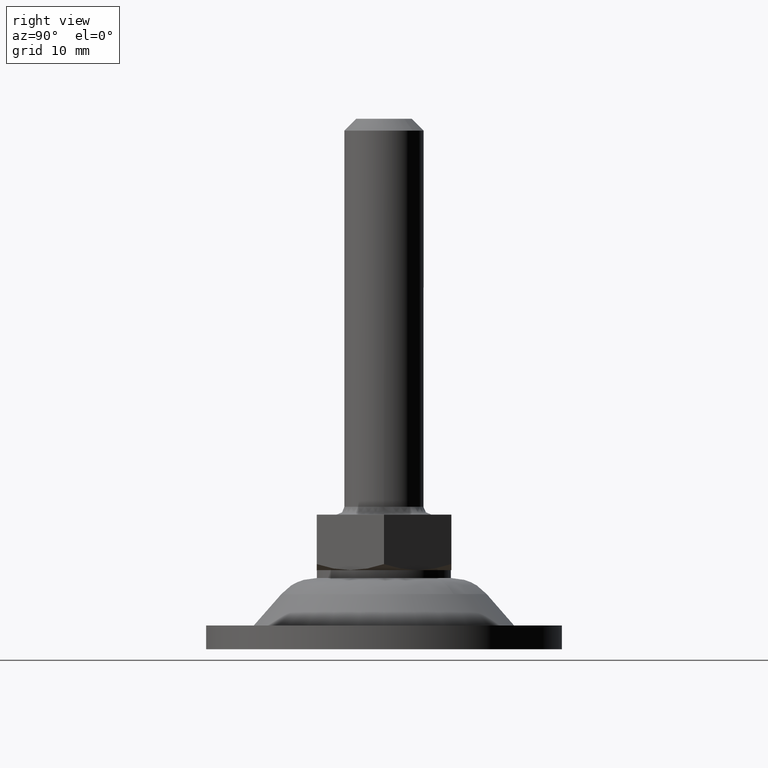
[diagram: clean part render]
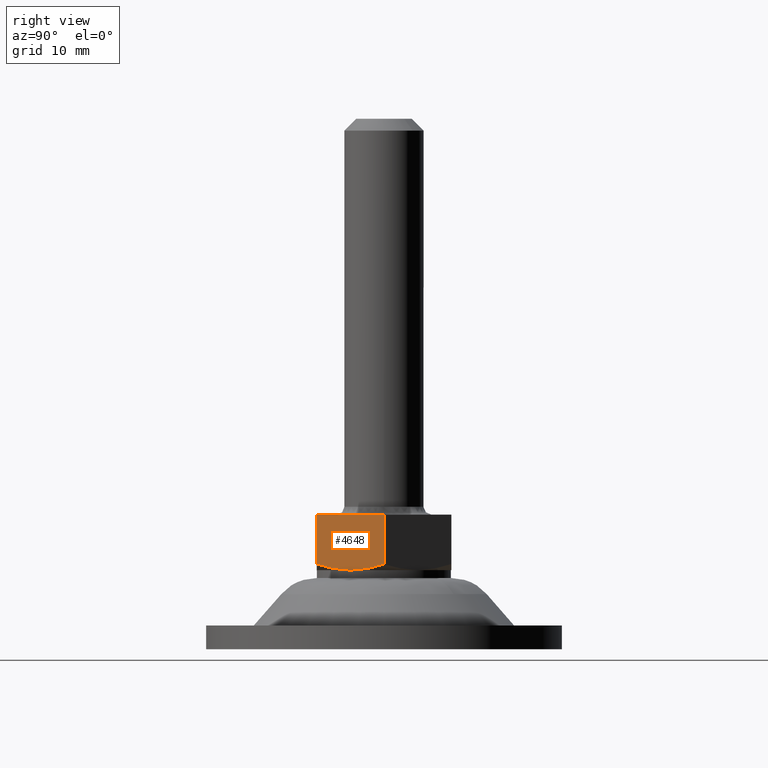
[diagram: same view with one face highlighted and labeled with its STEP entity id]
A machine part, right view. The second image highlights one B-rep face of the part: STEP entity #4648.
In plain terms, the highlighted face is a freeform B-spline surface patch.
Its self-contained STEP definition (entity closure, byte-faithful):
#4181=CARTESIAN_POINT('',(7.361215716083840,-4.250000491757140,10.0));
#4182=VERTEX_POINT('',#4181);
#4463=CARTESIAN_POINT('',(4.907477000000000,-8.500000000000000,10.759189256221140));
#4464=VERTEX_POINT('',#4463);
#4481=CARTESIAN_POINT('',(7.361215716083840,-4.250000491757140,10.0));
#4482=CARTESIAN_POINT('',(7.258456965199602,-4.427983843392349,10.000000989621510));
#4483=CARTESIAN_POINT('',(7.155199900870600,-4.606830299106769,10.004335824142300));
#4484=CARTESIAN_POINT('',(6.948045082854567,-4.965632916894620,10.021670879559540));
#4485=CARTESIAN_POINT('',(6.844048422186803,-5.145760390859048,10.034781721286709));
#4486=CARTESIAN_POINT('',(6.533099112962157,-5.684340314887130,10.086679513501220));
#4487=CARTESIAN_POINT('',(6.327189570208154,-6.040986052964616,10.138061107786131));
#4488=CARTESIAN_POINT('',(5.713126880214234,-7.104573676780420,10.336469077120091));
#4489=CARTESIAN_POINT('',(5.308625386922342,-7.805190713266592,10.527586167243680));
#4490=CARTESIAN_POINT('',(4.907477000000000,-8.500000000000000,10.759189256221140));
#4491=B_SPLINE_CURVE_WITH_KNOTS('',3,(#4481,#4482,#4483,#4484,#4485,#4486,#4487,#4488,#4489,#4490),.UNSPECIFIED.,.F.,.U.,(4,2,2,2,4),(0.500936470067049,0.562500000000000,0.625000000000000,0.750000000000000,1.0),.UNSPECIFIED.);
#4492=EDGE_CURVE('',#4182,#4464,#4491,.T.);
#4511=CARTESIAN_POINT('',(9.814954999999999,1.085020E-015,10.759189584059261));
#4512=VERTEX_POINT('',#4511);
#4513=CARTESIAN_POINT('',(9.814954999999999,1.085020E-015,10.759189584059261));
#4514=CARTESIAN_POINT('',(9.414306039186624,-0.693944255463544,10.527874798682690));
#4515=CARTESIAN_POINT('',(9.010735993766827,-1.392947977144676,10.337229470373900));
#4516=CARTESIAN_POINT('',(8.399068318228373,-2.452387314840497,10.139150173579470));
#4517=CARTESIAN_POINT('',(8.194124468711614,-2.807360423409189,10.087806985720979));
#4518=CARTESIAN_POINT('',(7.781849930526229,-3.521440766627392,10.018351914636961));
#4519=CARTESIAN_POINT('',(7.574517179362106,-3.880551573623377,10.000268746968620));
#4520=CARTESIAN_POINT('',(7.364341818161772,-4.244585924913969,10.000000990504020));
#4521=CARTESIAN_POINT('',(7.362778824733939,-4.247293108550161,10.000000002491150));
#4522=CARTESIAN_POINT('',(7.361215716083840,-4.250000491757140,10.0));
#4523=B_SPLINE_CURVE_WITH_KNOTS('',3,(#4513,#4514,#4515,#4516,#4517,#4518,#4519,#4520,#4521,#4522),.UNSPECIFIED.,.F.,.U.,(4,2,2,2,4),(0.0,0.250000000000000,0.375000000000000,0.500000000000000,0.500936470038509),.UNSPECIFIED.);
#4524=EDGE_CURVE('',#4512,#4182,#4523,.T.);
#4571=CARTESIAN_POINT('',(4.907477000000000,-8.500000000000000,17.0));
#4572=VERTEX_POINT('',#4571);
#4578=CARTESIAN_POINT('',(9.814954999999999,0.0,17.0));
#4579=VERTEX_POINT('',#4578);
#4580=CARTESIAN_POINT('',(4.907477000000000,-8.500000000000000,17.0));
#4581=CARTESIAN_POINT('',(9.814954999999999,0.0,17.0));
#4582=QUASI_UNIFORM_CURVE('',1,(#4580,#4581),.UNSPECIFIED.,.F.,.U.);
#4583=EDGE_CURVE('',#4572,#4579,#4582,.T.);
#4623=CARTESIAN_POINT('',(9.814954999999999,0.0,17.0));
#4624=CARTESIAN_POINT('',(9.814954999999999,1.085020E-015,10.759189584059261));
#4625=QUASI_UNIFORM_CURVE('',1,(#4623,#4624),.UNSPECIFIED.,.F.,.U.);
#4626=EDGE_CURVE('',#4579,#4512,#4625,.T.);
#4632=CARTESIAN_POINT('',(10.060083470520469,0.424574903733432,9.650350013567360));
#4633=CARTESIAN_POINT('',(4.662348353974450,-8.924575207717121,9.650350013567360));
#4634=CARTESIAN_POINT('',(10.060083470520469,0.424574903733432,17.349650174187278));
#4635=CARTESIAN_POINT('',(4.662348353974450,-8.924575207717121,17.349650174187278));
#4636=B_SPLINE_SURFACE_WITH_KNOTS('',1,1,((#4632,#4634),(#4633,#4635)),.UNSPECIFIED.,.F.,.F.,.U.,(2,2),(2,2),(0.0,10.795469058583320),(0.0,7.699300160619915),.UNSPECIFIED.);
#4637=ORIENTED_EDGE('',*,*,#4524,.F.);
#4638=ORIENTED_EDGE('',*,*,#4626,.F.);
#4639=ORIENTED_EDGE('',*,*,#4583,.F.);
#4640=CARTESIAN_POINT('',(4.907477000000000,-8.500000000000000,17.0));
#4641=CARTESIAN_POINT('',(4.907477000000000,-8.500000000000000,10.759189256221140));
#4642=QUASI_UNIFORM_CURVE('',1,(#4640,#4641),.UNSPECIFIED.,.F.,.U.);
#4643=EDGE_CURVE('',#4572,#4464,#4642,.T.);
#4644=ORIENTED_EDGE('',*,*,#4643,.T.);
#4645=ORIENTED_EDGE('',*,*,#4492,.F.);
#4646=EDGE_LOOP('',(#4637,#4638,#4639,#4644,#4645));
#4647=FACE_OUTER_BOUND('',#4646,.T.);
#4648=ADVANCED_FACE('',(#4647),#4636,.F.);